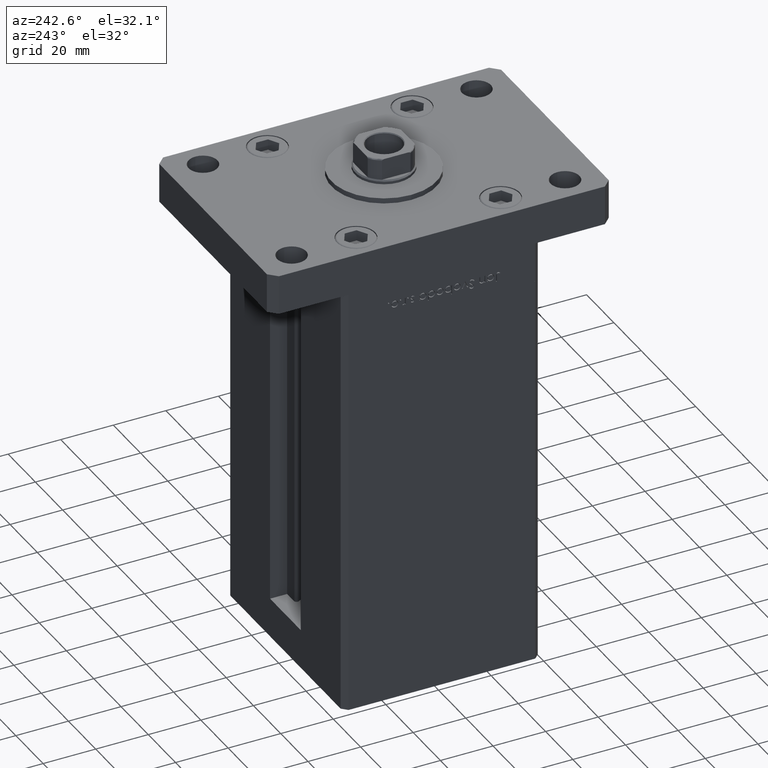
[diagram: clean part render]
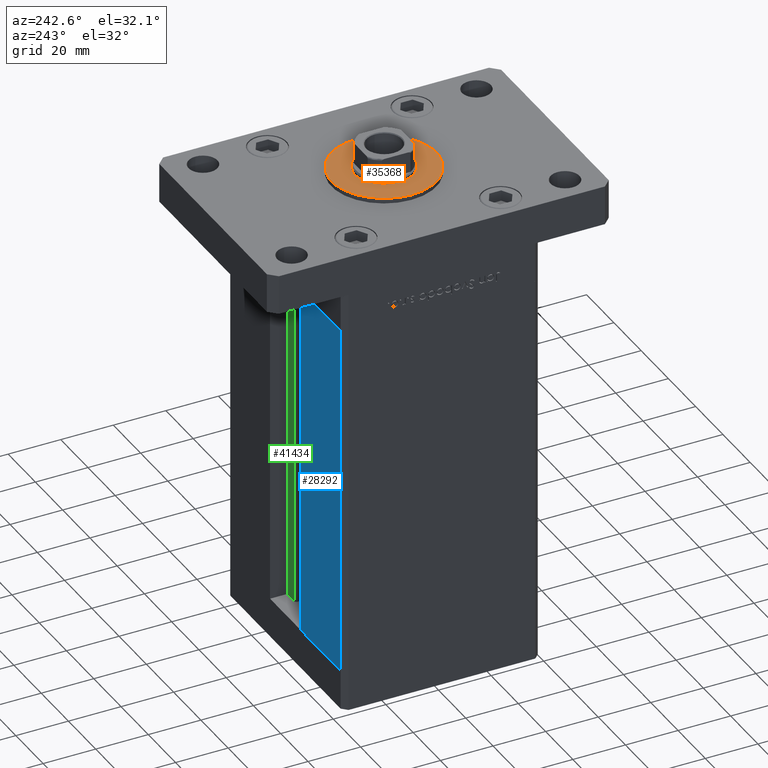
[diagram: same view with three faces highlighted in distinct colors, each labeled with its STEP entity id]
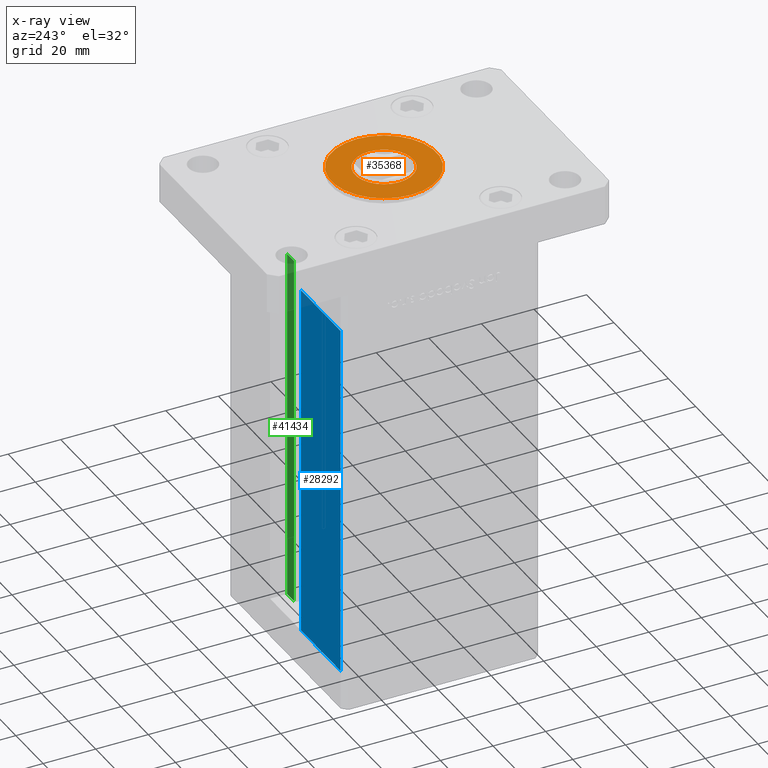
[diagram: x-ray of the same camera — body ghosted, the three highlighted faces saturated]
A machine part, auxiliary view with three faces highlighted in distinct colors.
The next image is the same camera in x-ray (body ghosted, the three faces saturated) — at least one of them is partly hidden behind the body in this view.
Their STEP definitions:

[orange] entity #35368 — the highlighted planar face has unit normal (0, 0, 1).
#461 = CIRCLE ( 'NONE', #50715, 11.00000000000000000 ) ;
#584 = CARTESIAN_POINT ( 'NONE',  ( -20.00000000000000000, 0.000000000000000000, 17.00000000000000000 ) ) ;
#3473 = CIRCLE ( 'NONE', #41636, 11.00000000000000000 ) ;
#3487 = CIRCLE ( 'NONE', #39895, 20.00000000000000000 ) ;
#6054 = PLANE ( 'NONE',  #41336 ) ;
#8221 = EDGE_CURVE ( 'NONE', #45888, #21680, #12914, .T. ) ;
#10392 = ORIENTED_EDGE ( 'NONE', *, *, #12188, .F. ) ;
#12188 = EDGE_CURVE ( 'NONE', #26810, #52390, #3473, .T. ) ;
#12914 = CIRCLE ( 'NONE', #51075, 20.00000000000000000 ) ;
#13287 = DIRECTION ( 'NONE',  ( 1.000000000000000000, 0.000000000000000000, 0.000000000000000000 ) ) ;
#14451 = CARTESIAN_POINT ( 'NONE',  ( 0.000000000000000000, 0.000000000000000000, 17.00000000000000000 ) ) ;
#14979 = DIRECTION ( 'NONE',  ( 1.000000000000000000, 0.000000000000000000, -0.000000000000000000 ) ) ;
#16615 = ORIENTED_EDGE ( 'NONE', *, *, #25846, .F. ) ;
#17200 = FACE_BOUND ( 'NONE', #32621, .T. ) ;
#21144 = DIRECTION ( 'NONE',  ( 0.000000000000000000, 0.000000000000000000, 1.000000000000000000 ) ) ;
#21510 = FACE_OUTER_BOUND ( 'NONE', #33018, .T. ) ;
#21680 = VERTEX_POINT ( 'NONE', #584 ) ;
#23936 = DIRECTION ( 'NONE',  ( 0.000000000000000000, 0.000000000000000000, 1.000000000000000000 ) ) ;
#25846 = EDGE_CURVE ( 'NONE', #52390, #26810, #461, .T. ) ;
#25907 = CARTESIAN_POINT ( 'NONE',  ( 0.000000000000000000, 0.000000000000000000, 17.00000000000000000 ) ) ;
#25911 = DIRECTION ( 'NONE',  ( 1.000000000000000000, 0.000000000000000000, 0.000000000000000000 ) ) ;
#26810 = VERTEX_POINT ( 'NONE', #39680 ) ;
#28363 = CARTESIAN_POINT ( 'NONE',  ( 20.00000000000000000, 2.449293598294706513E-15, 17.00000000000000000 ) ) ;
#30784 = DIRECTION ( 'NONE',  ( 1.000000000000000000, 0.000000000000000000, 0.000000000000000000 ) ) ;
#32621 = EDGE_LOOP ( 'NONE', ( #10392, #16615 ) ) ;
#33018 = EDGE_LOOP ( 'NONE', ( #44752, #45911 ) ) ;
#34617 = CARTESIAN_POINT ( 'NONE',  ( 0.000000000000000000, 0.000000000000000000, 17.00000000000000000 ) ) ;
#34875 = DIRECTION ( 'NONE',  ( 0.000000000000000000, 0.000000000000000000, 1.000000000000000000 ) ) ;
#35368 = ADVANCED_FACE ( 'NONE', ( #17200, #21510 ), #6054, .T. ) ;
#37260 = CARTESIAN_POINT ( 'NONE',  ( -11.00000000000000000, 1.347111479062088405E-15, 17.00000000000000000 ) ) ;
#39680 = CARTESIAN_POINT ( 'NONE',  ( 11.00000000000000000, 0.000000000000000000, 17.00000000000000000 ) ) ;
#39728 = DIRECTION ( 'NONE',  ( 1.000000000000000000, 0.000000000000000000, 0.000000000000000000 ) ) ;
#39895 = AXIS2_PLACEMENT_3D ( 'NONE', #53008, #23936, #39728 ) ;
#41336 = AXIS2_PLACEMENT_3D ( 'NONE', #14451, #51638, #14979 ) ;
#41636 = AXIS2_PLACEMENT_3D ( 'NONE', #50471, #21144, #13287 ) ;
#42502 = DIRECTION ( 'NONE',  ( 0.000000000000000000, 0.000000000000000000, 1.000000000000000000 ) ) ;
#44752 = ORIENTED_EDGE ( 'NONE', *, *, #47882, .T. ) ;
#45888 = VERTEX_POINT ( 'NONE', #28363 ) ;
#45911 = ORIENTED_EDGE ( 'NONE', *, *, #8221, .T. ) ;
#47882 = EDGE_CURVE ( 'NONE', #21680, #45888, #3487, .T. ) ;
#50471 = CARTESIAN_POINT ( 'NONE',  ( 0.000000000000000000, 0.000000000000000000, 17.00000000000000000 ) ) ;
#50715 = AXIS2_PLACEMENT_3D ( 'NONE', #34617, #34875, #25911 ) ;
#51075 = AXIS2_PLACEMENT_3D ( 'NONE', #25907, #42502, #30784 ) ;
#51638 = DIRECTION ( 'NONE',  ( 0.000000000000000000, 0.000000000000000000, 1.000000000000000000 ) ) ;
#52390 = VERTEX_POINT ( 'NONE', #37260 ) ;
#53008 = CARTESIAN_POINT ( 'NONE',  ( 0.000000000000000000, 0.000000000000000000, 17.00000000000000000 ) ) ;

[blue] entity #28292 — the highlighted planar face has unit normal (-0, -1, 0).
#3877 = VECTOR ( 'NONE', #52285, 1000.000000000000000 ) ;
#3986 = DIRECTION ( 'NONE',  ( 1.000000000000000000, -2.372271420139223331E-16, 0.000000000000000000 ) ) ;
#4398 = CARTESIAN_POINT ( 'NONE',  ( -11.25000000000000000, 37.50000000000000000, 0.000000000000000000 ) ) ;
#5575 = CARTESIAN_POINT ( 'NONE',  ( -40.50000000000000000, 37.50000000000000711, 0.000000000000000000 ) ) ;
#8216 = CARTESIAN_POINT ( 'NONE',  ( -40.50000000000000000, 37.50000000000000711, 135.5000000000000000 ) ) ;
#10485 = LINE ( 'NONE', #47915, #52919 ) ;
#10733 = DIRECTION ( 'NONE',  ( -0.000000000000000000, -0.000000000000000000, 1.000000000000000000 ) ) ;
#12117 = FACE_OUTER_BOUND ( 'NONE', #47350, .T. ) ;
#12658 = EDGE_CURVE ( 'NONE', #27717, #47168, #10485, .T. ) ;
#13393 = CARTESIAN_POINT ( 'NONE',  ( -11.25000000000000000, 37.50000000000000000, 135.5000000000000000 ) ) ;
#15344 = ORIENTED_EDGE ( 'NONE', *, *, #47975, .T. ) ;
#19930 = VECTOR ( 'NONE', #42139, 1000.000000000000000 ) ;
#23781 = ORIENTED_EDGE ( 'NONE', *, *, #31012, .F. ) ;
#24950 = VERTEX_POINT ( 'NONE', #5575 ) ;
#25234 = VERTEX_POINT ( 'NONE', #8216 ) ;
#25654 = ORIENTED_EDGE ( 'NONE', *, *, #28781, .T. ) ;
#27717 = VERTEX_POINT ( 'NONE', #4398 ) ;
#27840 = PLANE ( 'NONE',  #45429 ) ;
#28161 = VECTOR ( 'NONE', #31594, 1000.000000000000000 ) ;
#28292 = ADVANCED_FACE ( 'NONE', ( #12117 ), #27840, .F. ) ;
#28781 = EDGE_CURVE ( 'NONE', #25234, #47168, #35725, .T. ) ;
#31012 = EDGE_CURVE ( 'NONE', #25234, #24950, #45170, .T. ) ;
#31594 = DIRECTION ( 'NONE',  ( -0.000000000000000000, -0.000000000000000000, -1.000000000000000000 ) ) ;
#32187 = CARTESIAN_POINT ( 'NONE',  ( -11.25000000000000000, 37.50000000000000000, 135.5000000000000000 ) ) ;
#32736 = DIRECTION ( 'NONE',  ( -2.372271420139223331E-16, -1.000000000000000000, 0.000000000000000000 ) ) ;
#35725 = LINE ( 'NONE', #32187, #3877 ) ;
#35903 = LINE ( 'NONE', #52461, #19930 ) ;
#41107 = CARTESIAN_POINT ( 'NONE',  ( -40.50000000000000000, 37.50000000000000711, 135.5000000000000000 ) ) ;
#42139 = DIRECTION ( 'NONE',  ( -1.000000000000000000, 2.372271420139223331E-16, 0.000000000000000000 ) ) ;
#45170 = LINE ( 'NONE', #41107, #28161 ) ;
#45228 = CARTESIAN_POINT ( 'NONE',  ( -11.25000000000000000, 37.50000000000000000, 135.5000000000000000 ) ) ;
#45429 = AXIS2_PLACEMENT_3D ( 'NONE', #45228, #32736, #3986 ) ;
#46299 = ORIENTED_EDGE ( 'NONE', *, *, #12658, .F. ) ;
#47168 = VERTEX_POINT ( 'NONE', #13393 ) ;
#47350 = EDGE_LOOP ( 'NONE', ( #25654, #46299, #15344, #23781 ) ) ;
#47915 = CARTESIAN_POINT ( 'NONE',  ( -11.25000000000000000, 37.50000000000000000, 0.000000000000000000 ) ) ;
#47975 = EDGE_CURVE ( 'NONE', #27717, #24950, #35903, .T. ) ;
#52285 = DIRECTION ( 'NONE',  ( 1.000000000000000000, 0.000000000000000000, 0.000000000000000000 ) ) ;
#52461 = CARTESIAN_POINT ( 'NONE',  ( -11.25000000000000000, 37.50000000000000000, 0.000000000000000000 ) ) ;
#52919 = VECTOR ( 'NONE', #10733, 1000.000000000000000 ) ;

[green] entity #41434 — the highlighted planar face has unit normal (0, -1, 0).
#911 = LINE ( 'NONE', #20952, #20429 ) ;
#6851 = VECTOR ( 'NONE', #25701, 1000.000000000000000 ) ;
#7012 = FACE_OUTER_BOUND ( 'NONE', #29413, .T. ) ;
#7273 = CARTESIAN_POINT ( 'NONE',  ( 6.183333333333999704, 30.99999999999999289, 0.000000000000000000 ) ) ;
#7679 = LINE ( 'NONE', #32109, #18207 ) ;
#8010 = ORIENTED_EDGE ( 'NONE', *, *, #8810, .F. ) ;
#8354 = CARTESIAN_POINT ( 'NONE',  ( 6.183333333333999704, 30.99999999999999289, 0.000000000000000000 ) ) ;
#8722 = CARTESIAN_POINT ( 'NONE',  ( 6.183333333333999704, 30.99999999999999289, 135.5000000000000000 ) ) ;
#8791 = ORIENTED_EDGE ( 'NONE', *, *, #27185, .F. ) ;
#8810 = EDGE_CURVE ( 'NONE', #42055, #39506, #17057, .T. ) ;
#10116 = CARTESIAN_POINT ( 'NONE',  ( 11.25000000000000000, 30.99999999999999289, 135.5000000000000000 ) ) ;
#17057 = LINE ( 'NONE', #8354, #6851 ) ;
#17442 = DIRECTION ( 'NONE',  ( -0.000000000000000000, -0.000000000000000000, 1.000000000000000000 ) ) ;
#18207 = VECTOR ( 'NONE', #35649, 1000.000000000000000 ) ;
#19218 = DIRECTION ( 'NONE',  ( 0.000000000000000000, -0.000000000000000000, -1.000000000000000000 ) ) ;
#19873 = ORIENTED_EDGE ( 'NONE', *, *, #32804, .T. ) ;
#20429 = VECTOR ( 'NONE', #17442, 1000.000000000000000 ) ;
#20952 = CARTESIAN_POINT ( 'NONE',  ( 6.183333333333999704, 30.99999999999999289, 0.000000000000000000 ) ) ;
#25701 = DIRECTION ( 'NONE',  ( 1.000000000000000000, 0.000000000000000000, 0.000000000000000000 ) ) ;
#26168 = ORIENTED_EDGE ( 'NONE', *, *, #48728, .F. ) ;
#27185 = EDGE_CURVE ( 'NONE', #37538, #42776, #33067, .T. ) ;
#28414 = DIRECTION ( 'NONE',  ( 0.000000000000000000, -1.000000000000000000, 0.000000000000000000 ) ) ;
#29413 = EDGE_LOOP ( 'NONE', ( #26168, #8010, #19873, #8791 ) ) ;
#30245 = AXIS2_PLACEMENT_3D ( 'NONE', #7273, #28414, #19218 ) ;
#31428 = PLANE ( 'NONE',  #30245 ) ;
#32109 = CARTESIAN_POINT ( 'NONE',  ( 11.25000000000000000, 30.99999999999999289, 0.000000000000000000 ) ) ;
#32804 = EDGE_CURVE ( 'NONE', #42055, #42776, #911, .T. ) ;
#33067 = LINE ( 'NONE', #49620, #42926 ) ;
#35649 = DIRECTION ( 'NONE',  ( -0.000000000000000000, -0.000000000000000000, 1.000000000000000000 ) ) ;
#37538 = VERTEX_POINT ( 'NONE', #10116 ) ;
#39506 = VERTEX_POINT ( 'NONE', #41857 ) ;
#41363 = CARTESIAN_POINT ( 'NONE',  ( 6.183333333333999704, 30.99999999999999289, 0.000000000000000000 ) ) ;
#41434 = ADVANCED_FACE ( 'NONE', ( #7012 ), #31428, .F. ) ;
#41857 = CARTESIAN_POINT ( 'NONE',  ( 11.25000000000000000, 30.99999999999999289, 0.000000000000000000 ) ) ;
#42055 = VERTEX_POINT ( 'NONE', #41363 ) ;
#42776 = VERTEX_POINT ( 'NONE', #8722 ) ;
#42926 = VECTOR ( 'NONE', #45547, 1000.000000000000000 ) ;
#45547 = DIRECTION ( 'NONE',  ( -1.000000000000000000, 0.000000000000000000, 0.000000000000000000 ) ) ;
#48728 = EDGE_CURVE ( 'NONE', #39506, #37538, #7679, .T. ) ;
#49620 = CARTESIAN_POINT ( 'NONE',  ( 0.000000000000000000, 30.99999999999999289, 135.5000000000000000 ) ) ;